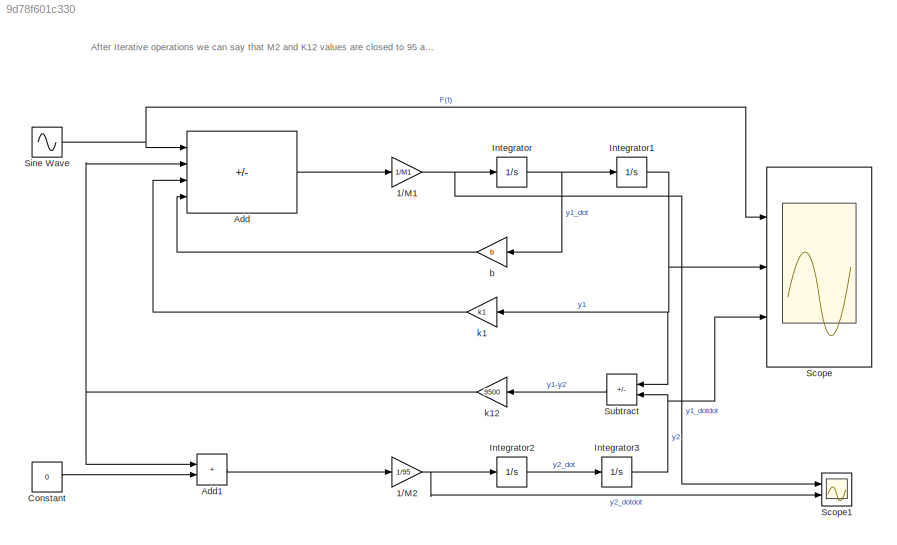
MODEL slx_9d78f601c330
KIND model
CONFIG AbsTol = auto
CONFIG EnableMultiTasking = off
CONFIG FixedStep = auto
CONFIG MaxStep = auto
CONFIG MinStep = auto
CONFIG RelTol = 1e-3
CONFIG SampleTimeConstraint = Unconstrained
CONFIG SolverName = VariableStepAuto
CONFIG StartTime = 0.0
CONFIG StopTime = 10.0
WORKSPACE source: mxarray member
WORKSPACE M1: Simulink.Parameter (value not decoded)
WORKSPACE b: Simulink.Parameter (value not decoded)
WORKSPACE k1: Simulink.Parameter (value not decoded)
BLOCK [Gain] 1//M1
  Gain = 1/M1
BLOCK [Gain] 1//M2
  Gain = 1/95
BLOCK [Sum] Add
  IconShape = rectangular
  Inputs = +---
  Ports = [4, 1]
BLOCK [Sum] Add1
  IconShape = rectangular
  Ports = [2, 1]
BLOCK [Constant] Constant
  Value = 0
BLOCK [Integrator] Integrator
  Ports = [1, 1]
BLOCK [Integrator] Integrator1
  Ports = [1, 1]
BLOCK [Integrator] Integrator2
  Ports = [1, 1]
BLOCK [Integrator] Integrator3
  Ports = [1, 1]
BLOCK [Scope] Scope
  Floating = off
  NumInputPorts = 3
  Ports = [3]
  ScopeSpecificationString = Simulink.scopes.TimeScopeBlockCfg('CurrentConfiguration', extmgr.ConfigurationSet(extmgr.Configuration('Core','General UI',true),extmgr.Configuration('Core','Source UI',true),extmgr.Configuration('Sources','WiredSimulink',true),extmgr.Configuration('Visuals','Time Domain',true,'SerializedDisplays',{struct('MinYLimReal','-2.49998','MaxYLimReal','2.49999','YLabelReal','','MinYLimMag','0.00000','MaxY...<+2726ch>
BLOCK [Scope] Scope1
  Floating = off
  NumInputPorts = 2
  Ports = [2]
  ScopeSpecificationString = Simulink.scopes.TimeScopeBlockCfg('CurrentConfiguration', extmgr.ConfigurationSet(extmgr.Configuration('Core','General UI',true),extmgr.Configuration('Core','Source UI',true),extmgr.Configuration('Sources','WiredSimulink',true,'DataLoggingVariableName','ScopeData1'),extmgr.Configuration('Visuals','Time Domain',true,'SerializedDisplays',{struct('MinYLimReal','-0.00252','MaxYLimReal','0.00247','YLab...<+2075ch>
BLOCK [Sin] Sine Wave
  Amplitude = 2
  Frequency = 10
  Ports = [0, 1]
  SampleTime = .01
BLOCK [Sum] Subtract
  IconShape = rectangular
  Inputs = +-
  NameLocation = top
  Ports = [2, 1]
BLOCK [Gain] b
  Gain = b
  NameLocation = top
BLOCK [Gain] k1
  Gain = k1
  NameLocation = top
BLOCK [Gain] k12
  Gain = 9500
  NameLocation = top
ANNOTATION (root): After Iterative operations we can say that M2 and K12 values are closed to 95 and 9500 respectively
NET 1//M1:1 -> Integrator:1, Scope1:1
NET 1//M2:1 -> Integrator2:1, Scope1:2
LINE Add1:1 -> 1//M2:1
LINE Add:1 -> 1//M1:1
LINE Constant:1 -> Add1:2
NET Integrator1:1 -> Scope:2, Subtract:1, k1:1
LINE Integrator2:1 -> Integrator3:1
NET Integrator3:1 -> Scope:3, Subtract:2
NET Integrator:1 -> Integrator1:1, b:1
NET Sine Wave:1 -> Add:1, Scope:1
LINE Subtract:1 -> k12:1
LINE b:1 -> Add:4
NET k12:1 -> Add1:1, Add:2
LINE k1:1 -> Add:3
note: NET lines group one-source signal fan-out (src -> all destinations, sorted); 1:1 wires keep LINE
